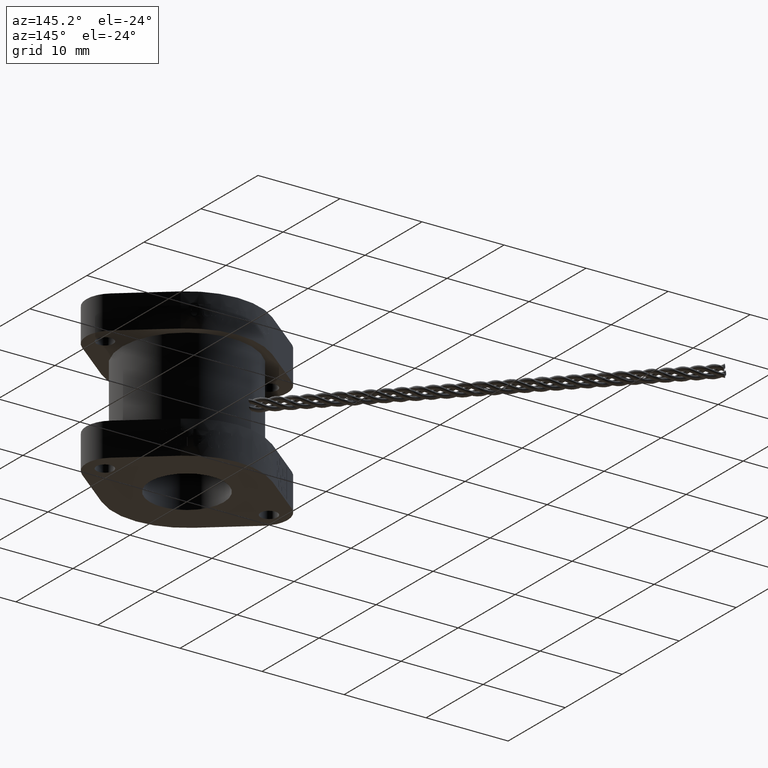
[diagram: clean part render]
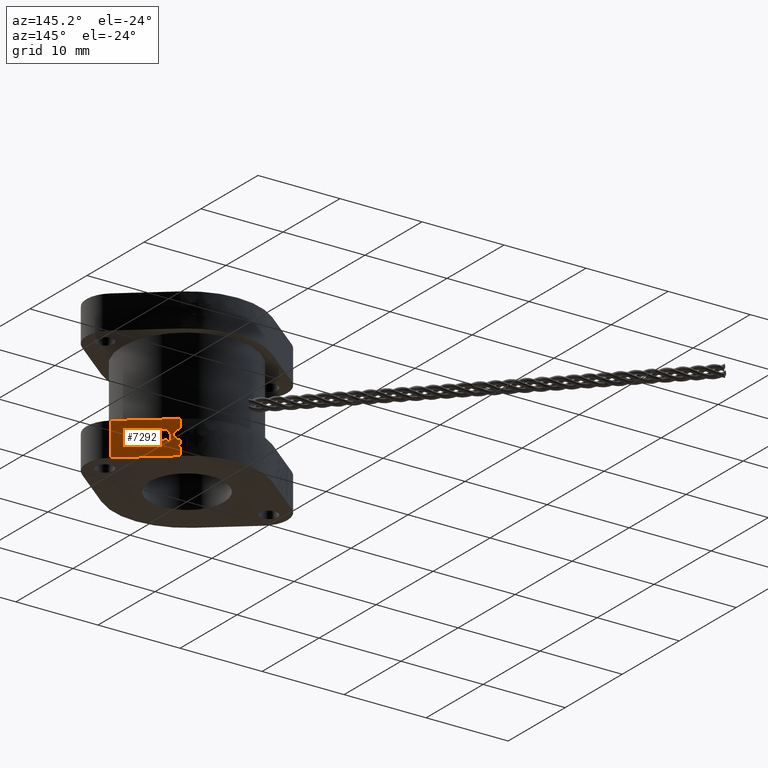
[diagram: same view with one face highlighted and labeled with its STEP entity id]
A machine part, auxiliary view. The second image highlights one B-rep face of the part: STEP entity #7292.
In plain terms, the highlighted planar face has unit normal (-0.6278, -0.7784, 0).
Its self-contained STEP definition (entity closure, byte-faithful):
#67=FACE_BOUND('',#1517,.T.);
#351=B_SPLINE_CURVE_WITH_KNOTS('',3,(#14774,#14775,#14776,#14777,#14778,
#14779,#14780,#14781),.UNSPECIFIED.,.F.,.F.,(4,2,2,4),(0.00496824445063436,
0.0164582152472371,0.0379259114226596,0.0928027767664526),.UNSPECIFIED.);
#352=B_SPLINE_CURVE_WITH_KNOTS('',3,(#14791,#14792,#14793,#14794,#14795,
#14796,#14797,#14798,#14799,#14800,#14801,#14802,#14803,#14804,#14805,#14806,
#14807,#14808,#14809,#14810,#14811,#14812),.UNSPECIFIED.,.F.,.F.,(4,3,3,
3,3,3,3,4),(0.,0.0121390126536792,0.0252764203033251,0.0261595046957589,
0.0332068453776416,0.0345769452463714,0.0373734069584378,0.0401754484435754),
 .UNSPECIFIED.);
#353=B_SPLINE_CURVE_WITH_KNOTS('',3,(#14823,#14824,#14825,#14826,#14827,
#14828,#14829,#14830,#14831,#14832,#14833,#14834,#14835,#14836,#14837,#14838),
 .UNSPECIFIED.,.F.,.F.,(4,3,3,3,3,4),(0.,0.0111111204291815,0.0307937350556354,
0.0312874219127049,0.0542408362511655,0.0816881400349341),.UNSPECIFIED.);
#363=B_SPLINE_CURVE_WITH_KNOTS('',3,(#15051,#15052,#15053,#15054,#15055,
#15056),.UNSPECIFIED.,.F.,.F.,(4,2,4),(0.,0.0183611771925571,0.0404128095996236),
 .UNSPECIFIED.);
#364=B_SPLINE_CURVE_WITH_KNOTS('',3,(#15067,#15068,#15069,#15070,#15071,
#15072,#15073,#15074,#15075,#15076,#15077,#15078,#15079,#15080,#15081,#15082),
 .UNSPECIFIED.,.F.,.F.,(4,3,3,3,3,4),(0.,0.0114010266551768,0.0273304725642002,
0.0281398899620021,0.0358214561072363,0.0439803191328988),.UNSPECIFIED.);
#366=B_SPLINE_CURVE_WITH_KNOTS('',3,(#15104,#15105,#15106,#15107,#15108,
#15109,#15110,#15111,#15112,#15113,#15114,#15115,#15116),.UNSPECIFIED.,
 .F.,.F.,(4,3,3,3,4),(0.,0.0167810358697571,0.0281770434500656,0.0319563456694539,
0.058707720117838),.UNSPECIFIED.);
#368=B_SPLINE_CURVE_WITH_KNOTS('',3,(#15135,#15136,#15137,#15138,#15139,
#15140,#15141,#15142,#15143,#15144),.UNSPECIFIED.,.F.,.F.,(4,3,3,4),(0.,
0.0159132904449915,0.0305967410579212,0.0587039397232699),.UNSPECIFIED.);
#370=B_SPLINE_CURVE_WITH_KNOTS('',3,(#15162,#15163,#15164,#15165,#15166,
#15167,#15168,#15169,#15170,#15171,#15172,#15173,#15174,#15175,#15176,#15177,
#15178,#15179,#15180,#15181,#15182,#15183),.UNSPECIFIED.,.F.,.F.,(4,3,3,
3,3,3,3,4),(0.,0.0150738887189481,0.0331871199843852,0.0344621377810908,
0.0448675950615487,0.047341310781941,0.05159987044799,0.0558087697147875),
 .UNSPECIFIED.);
#372=B_SPLINE_CURVE_WITH_KNOTS('',3,(#15211,#15212,#15213,#15214,#15215,
#15216,#15217,#15218,#15219,#15220,#15221,#15222,#15223,#15224,#15225,#15226),
 .UNSPECIFIED.,.F.,.F.,(4,3,3,3,3,4),(0.,0.0210020856806278,0.0507137203056783,
0.0552124357826461,0.0855833615953491,0.118175277670692),.UNSPECIFIED.);
#374=B_SPLINE_CURVE_WITH_KNOTS('',3,(#15244,#15245,#15246,#15247,#15248,
#15249,#15250,#15251),.UNSPECIFIED.,.F.,.F.,(4,2,2,4),(0.,0.0273427410525441,
0.0457365565757034,0.0711708763653387),.UNSPECIFIED.);
#376=B_SPLINE_CURVE_WITH_KNOTS('',3,(#15276,#15277,#15278,#15279,#15280,
#15281,#15282,#15283,#15284,#15285,#15286,#15287,#15288),.UNSPECIFIED.,
 .F.,.F.,(4,3,3,3,4),(0.,0.00793659951533481,0.0158475500723657,0.0160391993394174,
0.0304944252827283),.UNSPECIFIED.);
#384=B_SPLINE_CURVE_WITH_KNOTS('',3,(#15425,#15426,#15427,#15428,#15429,
#15430,#15431,#15432,#15433,#15434,#15435,#15436,#15437,#15438,#15439,#15440,
#15441,#15442,#15443),.UNSPECIFIED.,.F.,.F.,(4,3,3,3,3,3,4),(0.,0.0131345332253317,
0.0276453485606986,0.0288241078240574,0.0411346994779158,0.0457491246261238,
0.0502581520719624),.UNSPECIFIED.);
#386=B_SPLINE_CURVE_WITH_KNOTS('',3,(#15463,#15464,#15465,#15466,#15467,
#15468,#15469,#15470,#15471,#15472,#15473,#15474,#15475),.UNSPECIFIED.,
 .F.,.F.,(4,3,3,3,4),(0.,0.01361786986444,0.0297928237503827,0.0315679088613046,
0.0997993745056581),.UNSPECIFIED.);
#388=B_SPLINE_CURVE_WITH_KNOTS('',3,(#15500,#15501,#15502,#15503,#15504,
#15505,#15506,#15507,#15508,#15509,#15510,#15511,#15512),.UNSPECIFIED.,
 .F.,.F.,(4,3,3,3,4),(0.,0.014275644477196,0.0276247595929452,0.0303296526861949,
0.0677459350810522),.UNSPECIFIED.);
#390=B_SPLINE_CURVE_WITH_KNOTS('',3,(#15537,#15538,#15539,#15540,#15541,
#15542,#15543,#15544,#15545,#15546,#15547,#15548,#15549,#15550,#15551,#15552,
#15553,#15554,#15555),.UNSPECIFIED.,.F.,.F.,(4,3,3,3,3,3,4),(0.,0.0263493826610868,
0.0519735379039735,0.0532039692635792,0.0672659554539387,0.0682239048882527,
0.0854723635922232),.UNSPECIFIED.);
#392=B_SPLINE_CURVE_WITH_KNOTS('',3,(#15586,#15587,#15588,#15589,#15590,
#15591,#15592,#15593),.UNSPECIFIED.,.F.,.F.,(4,2,2,4),(0.,0.00809510613265533,
0.0147737673859648,0.0246874075900174),.UNSPECIFIED.);
#734=PLANE('',#7700);
#1103=FACE_OUTER_BOUND('',#1516,.T.);
#1516=EDGE_LOOP('',(#6427,#6428,#6429,#6430,#6431,#6432,#6433,#6434,#6435,
#6436,#6437,#6438,#6439));
#1517=EDGE_LOOP('',(#6440,#6441,#6442,#6443,#6444,#6445,#6446,#6447,#6448,
#6449,#6450,#6451,#6452,#6453));
#2172=LINE('',#14721,#2712);
#2173=LINE('',#14724,#2713);
#2175=LINE('',#14728,#2715);
#2211=LINE('',#15611,#2751);
#2214=LINE('',#15616,#2754);
#2219=LINE('',#15761,#2759);
#2221=LINE('',#15764,#2761);
#2222=LINE('',#15768,#2762);
#2223=LINE('',#15785,#2763);
#2239=LINE('',#15843,#2779);
#2240=LINE('',#15844,#2780);
#2712=VECTOR('',#8782,0.393700787401575);
#2713=VECTOR('',#8785,0.393700787401575);
#2715=VECTOR('',#8789,0.393700787401575);
#2751=VECTOR('',#8843,0.393700787401575);
#2754=VECTOR('',#8848,0.393700787401575);
#2759=VECTOR('',#8861,39.3700787401575);
#2761=VECTOR('',#8863,39.3700787401575);
#2762=VECTOR('',#8870,39.3700787401575);
#2763=VECTOR('',#8891,0.393700787401575);
#2779=VECTOR('',#8951,39.3700787401575);
#2780=VECTOR('',#8952,39.3700787401575);
#3362=VERTEX_POINT('',#14717);
#3363=VERTEX_POINT('',#14719);
#3364=VERTEX_POINT('',#14723);
#3365=VERTEX_POINT('',#14727);
#3369=VERTEX_POINT('',#14770);
#3370=VERTEX_POINT('',#14772);
#3371=VERTEX_POINT('',#14790);
#3372=VERTEX_POINT('',#14822);
#3385=VERTEX_POINT('',#15049);
#3386=VERTEX_POINT('',#15065);
#3387=VERTEX_POINT('',#15066);
#3390=VERTEX_POINT('',#15103);
#3392=VERTEX_POINT('',#15134);
#3394=VERTEX_POINT('',#15161);
#3396=VERTEX_POINT('',#15210);
#3398=VERTEX_POINT('',#15243);
#3400=VERTEX_POINT('',#15275);
#3410=VERTEX_POINT('',#15424);
#3412=VERTEX_POINT('',#15462);
#3414=VERTEX_POINT('',#15499);
#3416=VERTEX_POINT('',#15536);
#3418=VERTEX_POINT('',#15585);
#3420=VERTEX_POINT('',#15610);
#3428=VERTEX_POINT('',#15759);
#3429=VERTEX_POINT('',#15763);
#3434=VERTEX_POINT('',#15782);
#3455=VERTEX_POINT('',#15842);
#4321=EDGE_CURVE('',#3362,#3363,#2172,.T.);
#4322=EDGE_CURVE('',#3363,#3364,#2173,.T.);
#4324=EDGE_CURVE('',#3364,#3365,#2175,.T.);
#4333=EDGE_CURVE('',#3369,#3370,#351,.T.);
#4334=EDGE_CURVE('',#3370,#3371,#352,.T.);
#4336=EDGE_CURVE('',#3371,#3372,#353,.T.);
#4361=EDGE_CURVE('',#3372,#3385,#363,.T.);
#4362=EDGE_CURVE('',#3386,#3387,#364,.T.);
#4366=EDGE_CURVE('',#3387,#3390,#366,.T.);
#4369=EDGE_CURVE('',#3390,#3392,#368,.T.);
#4372=EDGE_CURVE('',#3392,#3394,#370,.T.);
#4375=EDGE_CURVE('',#3394,#3396,#372,.T.);
#4378=EDGE_CURVE('',#3396,#3398,#374,.T.);
#4381=EDGE_CURVE('',#3398,#3400,#376,.T.);
#4394=EDGE_CURVE('',#3410,#3386,#384,.T.);
#4397=EDGE_CURVE('',#3412,#3410,#386,.T.);
#4400=EDGE_CURVE('',#3414,#3412,#388,.T.);
#4403=EDGE_CURVE('',#3416,#3414,#390,.T.);
#4406=EDGE_CURVE('',#3418,#3416,#392,.T.);
#4409=EDGE_CURVE('',#3420,#3418,#2211,.T.);
#4412=EDGE_CURVE('',#3400,#3420,#2214,.T.);
#4426=EDGE_CURVE('',#3428,#3385,#2219,.T.);
#4428=EDGE_CURVE('',#3362,#3429,#2221,.T.);
#4430=EDGE_CURVE('',#3369,#3365,#2222,.T.);
#4436=EDGE_CURVE('',#3428,#3434,#2223,.T.);
#4464=EDGE_CURVE('',#3434,#3455,#2239,.T.);
#4465=EDGE_CURVE('',#3455,#3429,#2240,.T.);
#6427=ORIENTED_EDGE('',*,*,#4361,.T.);
#6428=ORIENTED_EDGE('',*,*,#4426,.F.);
#6429=ORIENTED_EDGE('',*,*,#4436,.T.);
#6430=ORIENTED_EDGE('',*,*,#4464,.T.);
#6431=ORIENTED_EDGE('',*,*,#4465,.T.);
#6432=ORIENTED_EDGE('',*,*,#4428,.F.);
#6433=ORIENTED_EDGE('',*,*,#4321,.T.);
#6434=ORIENTED_EDGE('',*,*,#4322,.T.);
#6435=ORIENTED_EDGE('',*,*,#4324,.T.);
#6436=ORIENTED_EDGE('',*,*,#4430,.F.);
#6437=ORIENTED_EDGE('',*,*,#4333,.T.);
#6438=ORIENTED_EDGE('',*,*,#4334,.T.);
#6439=ORIENTED_EDGE('',*,*,#4336,.T.);
#6440=ORIENTED_EDGE('',*,*,#4362,.T.);
#6441=ORIENTED_EDGE('',*,*,#4366,.T.);
#6442=ORIENTED_EDGE('',*,*,#4369,.T.);
#6443=ORIENTED_EDGE('',*,*,#4372,.T.);
#6444=ORIENTED_EDGE('',*,*,#4375,.T.);
#6445=ORIENTED_EDGE('',*,*,#4378,.T.);
#6446=ORIENTED_EDGE('',*,*,#4381,.T.);
#6447=ORIENTED_EDGE('',*,*,#4412,.T.);
#6448=ORIENTED_EDGE('',*,*,#4409,.T.);
#6449=ORIENTED_EDGE('',*,*,#4406,.T.);
#6450=ORIENTED_EDGE('',*,*,#4403,.T.);
#6451=ORIENTED_EDGE('',*,*,#4400,.T.);
#6452=ORIENTED_EDGE('',*,*,#4397,.T.);
#6453=ORIENTED_EDGE('',*,*,#4394,.T.);
#7292=ADVANCED_FACE('',(#1103,#67),#734,.F.);
#7700=AXIS2_PLACEMENT_3D('',#15841,#8949,#8950);
#8782=DIRECTION('',(0.778392614127597,-0.627777777777778,0.));
#8785=DIRECTION('',(0.,0.,1.));
#8789=DIRECTION('',(-0.778392614127597,0.627777777777778,0.));
#8843=DIRECTION('',(-0.778392614127597,0.627777777777778,0.));
#8848=DIRECTION('',(0.,0.,1.));
#8861=DIRECTION('',(0.,0.,-1.));
#8863=DIRECTION('',(0.,0.,-1.));
#8870=DIRECTION('',(0.,0.,-1.));
#8891=DIRECTION('',(0.778392614127597,-0.627777777777778,0.));
#8949=DIRECTION('center_axis',(-0.627777777777778,-0.778392614127597,0.));
#8950=DIRECTION('ref_axis',(0.778392614127597,-0.627777777777778,0.));
#8951=DIRECTION('',(0.,0.,-1.));
#8952=DIRECTION('',(-0.778392614127597,0.627777777777778,0.));
#14717=CARTESIAN_POINT('',(0.219969378827647,0.272743868729749,-0.31361491654963));
#14719=CARTESIAN_POINT('',(0.240732677125102,0.255998158367219,-0.31361491654963));
#14721=CARTESIAN_POINT('',(-0.0242462798085947,0.469705094587507,-0.31361491654963));
#14723=CARTESIAN_POINT('',(0.240732677125102,0.255998158367219,-0.304802112378587));
#14724=CARTESIAN_POINT('',(0.240732677125102,0.255998158367219,0.0247642981414154));
#14727=CARTESIAN_POINT('',(0.219969378827647,0.272743868729749,-0.304802112378587));
#14728=CARTESIAN_POINT('',(-0.0337839718261715,0.477397293859765,-0.304802112378587));
#14770=CARTESIAN_POINT('',(0.219969378827647,0.272743868729749,-0.285110329948303));
#14772=CARTESIAN_POINT('',(0.233439321949066,0.26188028805583,-0.280551706418266));
#14774=CARTESIAN_POINT('Ctrl Pts',(0.219969378827647,0.272743868729749,
-0.285110329948302));
#14775=CARTESIAN_POINT('Ctrl Pts',(0.221156303119059,0.271786607984298,
-0.285032133348813));
#14776=CARTESIAN_POINT('Ctrl Pts',(0.222351134652135,0.270822970006446,
-0.284910844011497));
#14777=CARTESIAN_POINT('Ctrl Pts',(0.225695759054621,0.268125512660647,
-0.284397148066484));
#14778=CARTESIAN_POINT('Ctrl Pts',(0.227005983473923,0.267068809707136,
-0.283982480953398));
#14779=CARTESIAN_POINT('Ctrl Pts',(0.22977923189454,0.264832170125616,-0.282981564618416));
#14780=CARTESIAN_POINT('Ctrl Pts',(0.231661286885683,0.263314282778599,
-0.281914866633526));
#14781=CARTESIAN_POINT('Ctrl Pts',(0.233439321949066,0.26188028805583,-0.280551706418266));
#14790=CARTESIAN_POINT('',(0.241158122843704,0.255655034135383,-0.262439874397776));
#14791=CARTESIAN_POINT('Ctrl Pts',(0.233439321949066,0.26188028805583,-0.280551706418266));
#14792=CARTESIAN_POINT('Ctrl Pts',(0.234508717746603,0.26101781466495,-0.279745276800451));
#14793=CARTESIAN_POINT('Ctrl Pts',(0.235515406032149,0.260205915215566,
-0.278815034417891));
#14794=CARTESIAN_POINT('Ctrl Pts',(0.23643100393753,0.259467480641618,-0.27774060732018));
#14795=CARTESIAN_POINT('Ctrl Pts',(0.237421906844489,0.258668312183908,
-0.27657781202742));
#14796=CARTESIAN_POINT('Ctrl Pts',(0.238282914262145,0.257973905128271,
-0.275273385034758));
#14797=CARTESIAN_POINT('Ctrl Pts',(0.239000616697326,0.257395074302174,
-0.273816496685242));
#14798=CARTESIAN_POINT('Ctrl Pts',(0.239048859991271,0.25735616582936,-0.273718565997751));
#14799=CARTESIAN_POINT('Ctrl Pts',(0.239099601135326,0.257315209839312,
-0.273613567095001));
#14800=CARTESIAN_POINT('Ctrl Pts',(0.239152450170294,0.257272622289435,
-0.273501463081431));
#14801=CARTESIAN_POINT('Ctrl Pts',(0.239574205052753,0.256932757860438,
-0.272606831512579));
#14802=CARTESIAN_POINT('Ctrl Pts',(0.240123751829614,0.256488985399557,
-0.271228084698558));
#14803=CARTESIAN_POINT('Ctrl Pts',(0.240540970854488,0.256152711258585,
-0.269206376798229));
#14804=CARTESIAN_POINT('Ctrl Pts',(0.240622083966088,0.25608733494471,-0.268813329001353));
#14805=CARTESIAN_POINT('Ctrl Pts',(0.240698128876914,0.256026021712888,
-0.268395894570565));
#14806=CARTESIAN_POINT('Ctrl Pts',(0.240767188179007,0.255970325018937,
-0.267952898642324));
#14807=CARTESIAN_POINT('Ctrl Pts',(0.240908142644131,0.255856644494125,
-0.267048715538448));
#14808=CARTESIAN_POINT('Ctrl Pts',(0.241005584665683,0.255778056986174,
-0.266130613605155));
#14809=CARTESIAN_POINT('Ctrl Pts',(0.241067936643054,0.255727769785238,
-0.265212007996463));
#14810=CARTESIAN_POINT('Ctrl Pts',(0.241130413031169,0.255677382246375,
-0.264291569496294));
#14811=CARTESIAN_POINT('Ctrl Pts',(0.241158122843704,0.255655034135383,
-0.263363764413144));
#14812=CARTESIAN_POINT('Ctrl Pts',(0.241158122843704,0.255655034135383,
-0.262439874397776));
#14822=CARTESIAN_POINT('',(0.234533325225471,0.260997968602538,-0.244388820337087));
#14823=CARTESIAN_POINT('Ctrl Pts',(0.241158122843704,0.255655034135383,
-0.262439874397776));
#14824=CARTESIAN_POINT('Ctrl Pts',(0.241158122843704,0.255655034135383,
-0.260981722110482));
#14825=CARTESIAN_POINT('Ctrl Pts',(0.241063719851614,0.25573117064993,-0.259531539332084));
#14826=CARTESIAN_POINT('Ctrl Pts',(0.240861278879381,0.255894440369315,
-0.258096754592418));
#14827=CARTESIAN_POINT('Ctrl Pts',(0.240502668092425,0.25618366187378,-0.255555128364643));
#14828=CARTESIAN_POINT('Ctrl Pts',(0.239887116882185,0.256680490221818,
-0.253641286744832));
#14829=CARTESIAN_POINT('Ctrl Pts',(0.239425950989396,0.257052053224798,
-0.252411511030726));
#14830=CARTESIAN_POINT('Ctrl Pts',(0.239414383850348,0.257061372909943,
-0.2523806653266));
#14831=CARTESIAN_POINT('Ctrl Pts',(0.239402920947609,0.257070613787417,
-0.252350265606668));
#14832=CARTESIAN_POINT('Ctrl Pts',(0.239391567250421,0.257079770604506,
-0.252320311977315));
#14833=CARTESIAN_POINT('Ctrl Pts',(0.238863689888273,0.257505506500933,
-0.250927651719816));
#14834=CARTESIAN_POINT('Ctrl Pts',(0.238236161916129,0.258011611143661,
-0.249613633792082));
#14835=CARTESIAN_POINT('Ctrl Pts',(0.23750702587262,0.258599663235606,-0.248379954881527));
#14836=CARTESIAN_POINT('Ctrl Pts',(0.236635137351339,0.259302845959112,
-0.246904742552315));
#14837=CARTESIAN_POINT('Ctrl Pts',(0.23563824871024,0.260106841943198,-0.245578737936069));
#14838=CARTESIAN_POINT('Ctrl Pts',(0.234533325225471,0.260997968602539,
-0.244388820337087));
#15049=CARTESIAN_POINT('',(0.219969378827647,0.272743868729749,-0.23726477894537));
#15051=CARTESIAN_POINT('Ctrl Pts',(0.234533325225471,0.260997968602538,
-0.244388820337087));
#15052=CARTESIAN_POINT('Ctrl Pts',(0.233095931172312,0.262157234541225,
-0.242840857510608));
#15053=CARTESIAN_POINT('Ctrl Pts',(0.231488064342604,0.263453987679676,
-0.241589887002105));
#15054=CARTESIAN_POINT('Ctrl Pts',(0.227742493361378,0.266474810570882,
-0.239361334889399));
#15055=CARTESIAN_POINT('Ctrl Pts',(0.224623920557932,0.268989956101368,
-0.237840446323311));
#15056=CARTESIAN_POINT('Ctrl Pts',(0.219969378827647,0.272743868729749,
-0.23726477894537));
#15065=CARTESIAN_POINT('',(0.299383408332393,0.208696032121299,-0.262926098076179));
#15066=CARTESIAN_POINT('',(0.292333164995558,0.21438209082029,-0.244084930538085));
#15067=CARTESIAN_POINT('Ctrl Pts',(0.299383408332393,0.208696032121299,
-0.262926098076179));
#15068=CARTESIAN_POINT('Ctrl Pts',(0.299383408332393,0.208696032121299,
-0.261429900352402));
#15069=CARTESIAN_POINT('Ctrl Pts',(0.299286990698758,0.208773793454953,
-0.259941726398929));
#15070=CARTESIAN_POINT('Ctrl Pts',(0.299080093306141,0.208940657301048,
-0.258469313671825));
#15071=CARTESIAN_POINT('Ctrl Pts',(0.298791017512874,0.209173798463763,
-0.256412067460448));
#15072=CARTESIAN_POINT('Ctrl Pts',(0.298294149488941,0.209574525164097,
-0.254441656155338));
#15073=CARTESIAN_POINT('Ctrl Pts',(0.297584506374304,0.210146856105368,
-0.252560426250795));
#15074=CARTESIAN_POINT('Ctrl Pts',(0.297548447525396,0.210175937758541,
-0.252464835969582));
#15075=CARTESIAN_POINT('Ctrl Pts',(0.297509955185814,0.210206881452576,
-0.252364478298336));
#15076=CARTESIAN_POINT('Ctrl Pts',(0.297468902598684,0.210239754628744,
-0.252259566131226));
#15077=CARTESIAN_POINT('Ctrl Pts',(0.297079303654641,0.210551728991819,
-0.251263924385339));
#15078=CARTESIAN_POINT('Ctrl Pts',(0.296480204375122,0.211037481533398,
-0.249877947089047));
#15079=CARTESIAN_POINT('Ctrl Pts',(0.295590966379366,0.211754656700222,
-0.248366945753056));
#15080=CARTESIAN_POINT('Ctrl Pts',(0.294646475260314,0.212516393804464,
-0.246762057804575));
#15081=CARTESIAN_POINT('Ctrl Pts',(0.29356020944329,0.213392472955667,-0.24533512676785));
#15082=CARTESIAN_POINT('Ctrl Pts',(0.292333164995558,0.21438209082029,-0.244084930538085));
#15103=CARTESIAN_POINT('',(0.275558448090675,0.227910989104097,-0.23703468720125));
#15104=CARTESIAN_POINT('Ctrl Pts',(0.292333164995558,0.21438209082029,-0.244084930538085));
#15105=CARTESIAN_POINT('Ctrl Pts',(0.290998966778291,0.215458128769198,
-0.242702216022008));
#15106=CARTESIAN_POINT('Ctrl Pts',(0.28956437317,0.216615136134224,-0.241520507293297));
#15107=CARTESIAN_POINT('Ctrl Pts',(0.288029965037021,0.217852644443581,
-0.240538668791866));
#15108=CARTESIAN_POINT('Ctrl Pts',(0.286987947914216,0.218693036787867,
-0.239871901907402));
#15109=CARTESIAN_POINT('Ctrl Pts',(0.285905949273777,0.219565838913084,
-0.239301882133576));
#15110=CARTESIAN_POINT('Ctrl Pts',(0.284796697980321,0.220460361537498,
-0.238827637015359));
#15111=CARTESIAN_POINT('Ctrl Pts',(0.284428832669099,0.220757015546888,
-0.238670361266358));
#15112=CARTESIAN_POINT('Ctrl Pts',(0.284057996210965,0.221056058399171,
-0.238524269526173));
#15113=CARTESIAN_POINT('Ctrl Pts',(0.283684729208224,0.221357100219514,
-0.238389151499574));
#15114=CARTESIAN_POINT('Ctrl Pts',(0.281042599846801,0.223487991583347,
-0.237432733432313));
#15115=CARTESIAN_POINT('Ctrl Pts',(0.278303030462143,0.225697468843477,
-0.23703468720125));
#15116=CARTESIAN_POINT('Ctrl Pts',(0.275558448090675,0.227910989104097,
-0.23703468720125));
#15134=CARTESIAN_POINT('',(0.259026843024993,0.241243816398284,-0.243841818698884));
#15135=CARTESIAN_POINT('Ctrl Pts',(0.275558448090675,0.227910989104097,
-0.23703468720125));
#15136=CARTESIAN_POINT('Ctrl Pts',(0.273932885393976,0.229222014053269,
-0.23703468720125));
#15137=CARTESIAN_POINT('Ctrl Pts',(0.272304486093045,0.23053532673882,-0.237167220327233));
#15138=CARTESIAN_POINT('Ctrl Pts',(0.270695708968615,0.231832814034799,
-0.237467278923293));
#15139=CARTESIAN_POINT('Ctrl Pts',(0.269211264281614,0.233030026559592,
-0.237744147845623));
#15140=CARTESIAN_POINT('Ctrl Pts',(0.2677586052165,0.234202074827681,-0.238160929856739));
#15141=CARTESIAN_POINT('Ctrl Pts',(0.266350587180929,0.235337198294482,
-0.238736470075659));
#15142=CARTESIAN_POINT('Ctrl Pts',(0.263655345871959,0.237510062264412,
-0.239838174552318));
#15143=CARTESIAN_POINT('Ctrl Pts',(0.261193118114411,0.239496704032355,
-0.241508907064126));
#15144=CARTESIAN_POINT('Ctrl Pts',(0.259026843024993,0.241243816398284,
-0.243841818698884));
#15161=CARTESIAN_POINT('',(0.250761040492152,0.247910230045377,-0.271556568367821));
#15162=CARTESIAN_POINT('Ctrl Pts',(0.259026843024993,0.241243816398284,
-0.243841818698884));
#15163=CARTESIAN_POINT('Ctrl Pts',(0.257833161176683,0.242206527149265,
-0.245091454383833));
#15164=CARTESIAN_POINT('Ctrl Pts',(0.25677891967395,0.243056778520894,-0.246516263868285));
#15165=CARTESIAN_POINT('Ctrl Pts',(0.25585297660535,0.243803556523927,-0.248096834436132));
#15166=CARTESIAN_POINT('Ctrl Pts',(0.254740335982025,0.244700907096503,
-0.249996094856622));
#15167=CARTESIAN_POINT('Ctrl Pts',(0.253838937494651,0.245427889764408,
-0.252075950732237));
#15168=CARTESIAN_POINT('Ctrl Pts',(0.253109591502076,0.246016111181389,
-0.254260341302238));
#15169=CARTESIAN_POINT('Ctrl Pts',(0.253058251732442,0.246057516978294,
-0.254414103864582));
#15170=CARTESIAN_POINT('Ctrl Pts',(0.253004629783327,0.246100759757939,
-0.25457776642565));
#15171=CARTESIAN_POINT('Ctrl Pts',(0.252949047044963,0.246145470280176,
-0.254751462483038));
#15172=CARTESIAN_POINT('Ctrl Pts',(0.252495434702394,0.246510354151075,
-0.256169001053564));
#15173=CARTESIAN_POINT('Ctrl Pts',(0.251923368344247,0.246972993194129,
-0.258261510921241));
#15174=CARTESIAN_POINT('Ctrl Pts',(0.251477205568798,0.247332689111639,
-0.261175900253383));
#15175=CARTESIAN_POINT('Ctrl Pts',(0.251371138161885,0.24741820053336,-0.261868745412606));
#15176=CARTESIAN_POINT('Ctrl Pts',(0.251272303215458,0.247497893943425,
-0.262608207620535));
#15177=CARTESIAN_POINT('Ctrl Pts',(0.25118404732828,0.247569072785211,-0.263396351472896));
#15178=CARTESIAN_POINT('Ctrl Pts',(0.251032112747306,0.247691608831777,
-0.26475315961097));
#15179=CARTESIAN_POINT('Ctrl Pts',(0.250926232079215,0.247777002152985,
-0.2661227671381));
#15180=CARTESIAN_POINT('Ctrl Pts',(0.250858397027277,0.247831711482683,
-0.267490724110027));
#15181=CARTESIAN_POINT('Ctrl Pts',(0.250791353021145,0.247885782829737,
-0.268842728906873));
#15182=CARTESIAN_POINT('Ctrl Pts',(0.250761040492152,0.247910230045377,
-0.270201859073453));
#15183=CARTESIAN_POINT('Ctrl Pts',(0.250761040492152,0.247910230045377,
-0.271556568367822));
#15210=CARTESIAN_POINT('',(0.258966065065193,0.241292834145689,-0.302917995624777));
#15211=CARTESIAN_POINT('Ctrl Pts',(0.250761040492152,0.247910230045377,
-0.271556568367822));
#15212=CARTESIAN_POINT('Ctrl Pts',(0.250761040492152,0.247910230045377,
-0.274312747591001));
#15213=CARTESIAN_POINT('Ctrl Pts',(0.250880382198415,0.247813980325387,
-0.277076846051421));
#15214=CARTESIAN_POINT('Ctrl Pts',(0.251150746331059,0.247595930216352,
-0.279811191445389));
#15215=CARTESIAN_POINT('Ctrl Pts',(0.251533230263703,0.247287454893086,
-0.283679467792781));
#15216=CARTESIAN_POINT('Ctrl Pts',(0.252150082466161,0.246792038858616,
-0.286792757339131));
#15217=CARTESIAN_POINT('Ctrl Pts',(0.252766713165562,0.246293008677665,
-0.289212565689809));
#15218=CARTESIAN_POINT('Ctrl Pts',(0.25286007881528,0.246217449226735,-0.289578955133402));
#15219=CARTESIAN_POINT('Ctrl Pts',(0.252953739165439,0.246141806918707,
-0.289929245103162));
#15220=CARTESIAN_POINT('Ctrl Pts',(0.253046843068954,0.246066718125995,
-0.290263666607118));
#15221=CARTESIAN_POINT('Ctrl Pts',(0.253675389542052,0.245559792056875,
-0.292521353437687));
#15222=CARTESIAN_POINT('Ctrl Pts',(0.254455541438394,0.244930595408647,
-0.294691109599293));
#15223=CARTESIAN_POINT('Ctrl Pts',(0.255402672326565,0.244166729316588,
-0.296757192017872));
#15224=CARTESIAN_POINT('Ctrl Pts',(0.256419065788194,0.243347002591144,
-0.298974364625856));
#15225=CARTESIAN_POINT('Ctrl Pts',(0.257607309587765,0.242388677655354,
-0.301027553221399));
#15226=CARTESIAN_POINT('Ctrl Pts',(0.258966065065193,0.241292834145689,
-0.302917995624777));
#15243=CARTESIAN_POINT('',(0.284371252261719,0.220803415730358,-0.315012809625037));
#15244=CARTESIAN_POINT('Ctrl Pts',(0.258966065065193,0.241292834145689,
-0.302917995624777));
#15245=CARTESIAN_POINT('Ctrl Pts',(0.260852334428617,0.239771547885043,
-0.305564403388387));
#15246=CARTESIAN_POINT('Ctrl Pts',(0.263057554657797,0.237993026057036,
-0.307717184811956));
#15247=CARTESIAN_POINT('Ctrl Pts',(0.267146866551308,0.234694974294269,
-0.310619625951966));
#15248=CARTESIAN_POINT('Ctrl Pts',(0.269366788524027,0.232904595432008,
-0.311945550512623));
#15249=CARTESIAN_POINT('Ctrl Pts',(0.276141515318896,0.227440742287537,
-0.314452029873365));
#15250=CARTESIAN_POINT('Ctrl Pts',(0.280281719067821,0.224101645973062,
-0.315012809625037));
#15251=CARTESIAN_POINT('Ctrl Pts',(0.284371252261719,0.220803415730358,
-0.315012809625037));
#15275=CARTESIAN_POINT('',(0.292880166633761,0.213940931093644,-0.313979584308432));
#15276=CARTESIAN_POINT('Ctrl Pts',(0.284371252261719,0.220803415730358,
-0.315012809625037));
#15277=CARTESIAN_POINT('Ctrl Pts',(0.28518198591579,0.220149554732084,-0.315012809625037));
#15278=CARTESIAN_POINT('Ctrl Pts',(0.285995411853385,0.219493522392848,
-0.314993509335412));
#15279=CARTESIAN_POINT('Ctrl Pts',(0.28680549054987,0.218840189621346,-0.314951076301567));
#15280=CARTESIAN_POINT('Ctrl Pts',(0.287612951289551,0.218188968245912,
-0.314908780399892));
#15281=CARTESIAN_POINT('Ctrl Pts',(0.288364034036821,0.21758256756216,-0.314846044578005));
#15282=CARTESIAN_POINT('Ctrl Pts',(0.289051155166342,0.217029026500008,
-0.314769697785836));
#15283=CARTESIAN_POINT('Ctrl Pts',(0.28906780123939,0.217015616513676,-0.314767848222164));
#15284=CARTESIAN_POINT('Ctrl Pts',(0.289084399373956,0.217002237550146,
-0.314765988154748));
#15285=CARTESIAN_POINT('Ctrl Pts',(0.289100949576711,0.216988889723716,
-0.314764117721453));
#15286=CARTESIAN_POINT('Ctrl Pts',(0.290349255525977,0.215982124345173,
-0.314623039509652));
#15287=CARTESIAN_POINT('Ctrl Pts',(0.291665402182753,0.214920645075684,
-0.314384505792102));
#15288=CARTESIAN_POINT('Ctrl Pts',(0.292880166633761,0.213940931093644,
-0.313979584308432));
#15424=CARTESIAN_POINT('',(0.291239161719153,0.215264410273582,-0.282071155413274));
#15425=CARTESIAN_POINT('Ctrl Pts',(0.291239161719153,0.215264410273582,
-0.282071155413274));
#15426=CARTESIAN_POINT('Ctrl Pts',(0.292397869147401,0.214329906578149,
-0.281202124842088));
#15427=CARTESIAN_POINT('Ctrl Pts',(0.293486540029044,0.213451887729557,
-0.280191244783674));
#15428=CARTESIAN_POINT('Ctrl Pts',(0.294465555993872,0.212662306153815,
-0.279012443266169));
#15429=CARTESIAN_POINT('Ctrl Pts',(0.295547156659253,0.211789989472191,
-0.277710122822487));
#15430=CARTESIAN_POINT('Ctrl Pts',(0.296464840474333,0.211049872600991,
-0.276239091867));
#15431=CARTESIAN_POINT('Ctrl Pts',(0.297199133300874,0.210457661536141,
-0.27458471568452));
#15432=CARTESIAN_POINT('Ctrl Pts',(0.297258782221441,0.210409554364874,
-0.274450325493128));
#15433=CARTESIAN_POINT('Ctrl Pts',(0.297318377712179,0.210361445116774,
-0.274312119966432));
#15434=CARTESIAN_POINT('Ctrl Pts',(0.297377735658983,0.210313477438632,
-0.274170020639235));
#15435=CARTESIAN_POINT('Ctrl Pts',(0.297997651418912,0.209812518068431,
-0.272685979880618));
#15436=CARTESIAN_POINT('Ctrl Pts',(0.298601060485455,0.209326999815347,
-0.270782162167845));
#15437=CARTESIAN_POINT('Ctrl Pts',(0.298981032239959,0.209020550577094,
-0.268368106643893));
#15438=CARTESIAN_POINT('Ctrl Pts',(0.299123458474936,0.208905683062079,
-0.267463237176031));
#15439=CARTESIAN_POINT('Ctrl Pts',(0.299224748411492,0.208823992190238,
-0.266548559771937));
#15440=CARTESIAN_POINT('Ctrl Pts',(0.299290078488492,0.208771303136133,
-0.265629208757943));
#15441=CARTESIAN_POINT('Ctrl Pts',(0.299353916366618,0.208719817548345,
-0.264730856564265));
#15442=CARTESIAN_POINT('Ctrl Pts',(0.299383408332393,0.208696032121299,
-0.263828174189564));
#15443=CARTESIAN_POINT('Ctrl Pts',(0.299383408332393,0.208696032121299,
-0.262926098076179));
#15462=CARTESIAN_POINT('',(0.276713229326881,0.2269796519034,-0.286507946478696));
#15463=CARTESIAN_POINT('Ctrl Pts',(0.276713229326881,0.2269796519034,-0.286507946478696));
#15464=CARTESIAN_POINT('Ctrl Pts',(0.278104311915153,0.225857736407132,
-0.286507946478696));
#15465=CARTESIAN_POINT('Ctrl Pts',(0.279516301085218,0.2247189596416,-0.286441154549961));
#15466=CARTESIAN_POINT('Ctrl Pts',(0.280901835404834,0.223601518853473,
-0.286277591048544));
#15467=CARTESIAN_POINT('Ctrl Pts',(0.282547537262045,0.222274251564378,
-0.286083314548681));
#15468=CARTESIAN_POINT('Ctrl Pts',(0.283711586172129,0.221339236761852,
-0.285803798622685));
#15469=CARTESIAN_POINT('Ctrl Pts',(0.284371252261719,0.220803851646344,
-0.285626666061591));
#15470=CARTESIAN_POINT('Ctrl Pts',(0.284443645881018,0.220745096972059,
-0.285607227034187));
#15471=CARTESIAN_POINT('Ctrl Pts',(0.284510446010231,0.220691155232846,
-0.285588668130718));
#15472=CARTESIAN_POINT('Ctrl Pts',(0.284571349581592,0.220642036179051,
-0.285571350389484));
#15473=CARTESIAN_POINT('Ctrl Pts',(0.286912386589531,0.218753977397574,
-0.284905683792001));
#15474=CARTESIAN_POINT('Ctrl Pts',(0.289167152690243,0.216935496561011,
-0.283616382485681));
#15475=CARTESIAN_POINT('Ctrl Pts',(0.291239161719153,0.215264410273582,
-0.282071155413274));
#15499=CARTESIAN_POINT('',(0.261093293658203,0.239577212986511,-0.28128104193587));
#15500=CARTESIAN_POINT('Ctrl Pts',(0.261093293658203,0.239577212986511,
-0.28128104193587));
#15501=CARTESIAN_POINT('Ctrl Pts',(0.262375945765774,0.238542747248864,
-0.2821723764513));
#15502=CARTESIAN_POINT('Ctrl Pts',(0.263694372784918,0.237479428855011,
-0.282968518119473));
#15503=CARTESIAN_POINT('Ctrl Pts',(0.26504969092002,0.23638635758019,-0.283659976666105));
#15504=CARTESIAN_POINT('Ctrl Pts',(0.266317045107274,0.235364229696533,
-0.28430655761392));
#15505=CARTESIAN_POINT('Ctrl Pts',(0.267479286953042,0.234431499581203,
-0.284789101311859));
#15506=CARTESIAN_POINT('Ctrl Pts',(0.26844742679404,0.2336470099561,-0.285140442383189));
#15507=CARTESIAN_POINT('Ctrl Pts',(0.268643598206639,0.23348805106255,-0.285211633621632));
#15508=CARTESIAN_POINT('Ctrl Pts',(0.268832900955884,0.233335178591495,
-0.285277013831631));
#15509=CARTESIAN_POINT('Ctrl Pts',(0.269014296551593,0.233188882080061,
-0.285337059074226));
#15510=CARTESIAN_POINT('Ctrl Pts',(0.271523508043605,0.231165189683911,
-0.28616765373212));
#15511=CARTESIAN_POINT('Ctrl Pts',(0.274122576400498,0.229069027248952,
-0.286507946478696));
#15512=CARTESIAN_POINT('Ctrl Pts',(0.276713229326881,0.2269796519034,-0.286507946478696));
#15536=CARTESIAN_POINT('',(0.283034137146112,0.22188180617327,-0.306321561373594));
#15537=CARTESIAN_POINT('Ctrl Pts',(0.283034137146112,0.22188180617327,-0.306321561373594));
#15538=CARTESIAN_POINT('Ctrl Pts',(0.280342514462357,0.224052614164451,
-0.306321561373594));
#15539=CARTESIAN_POINT('Ctrl Pts',(0.277632790049857,0.226238021296013,
-0.305929516839911));
#15540=CARTESIAN_POINT('Ctrl Pts',(0.275054429132698,0.228317483070835,
-0.304932889204567));
#15541=CARTESIAN_POINT('Ctrl Pts',(0.2725470337503,0.230339710764936,-0.303963692256924));
#15542=CARTESIAN_POINT('Ctrl Pts',(0.27025325838553,0.232189652780163,-0.302457551653411));
#15543=CARTESIAN_POINT('Ctrl Pts',(0.268229659827296,0.233821695765856,
-0.300322682023984));
#15544=CARTESIAN_POINT('Ctrl Pts',(0.268132489828844,0.233900063885733,
-0.300220168964887));
#15545=CARTESIAN_POINT('Ctrl Pts',(0.268032800464106,0.233980391953576,
-0.300112892476589));
#15546=CARTESIAN_POINT('Ctrl Pts',(0.267930814135737,0.234062438720611,
-0.300000653554363));
#15547=CARTESIAN_POINT('Ctrl Pts',(0.266765263266171,0.235000110290837,
-0.298717930904258));
#15548=CARTESIAN_POINT('Ctrl Pts',(0.265327353187536,0.236162262259502,
-0.296800117369749));
#15549=CARTESIAN_POINT('Ctrl Pts',(0.264054726066583,0.237188786484725,
-0.293914524126105));
#15550=CARTESIAN_POINT('Ctrl Pts',(0.263968030459426,0.237258716741202,
-0.293717947883034));
#15551=CARTESIAN_POINT('Ctrl Pts',(0.26388211026776,0.237328017577919,-0.293516869434429));
#15552=CARTESIAN_POINT('Ctrl Pts',(0.263797104540941,0.237396575148112,
-0.293311182699398));
#15553=CARTESIAN_POINT('Ctrl Pts',(0.262266525038395,0.23863099564669,-0.289607668684925));
#15554=CARTESIAN_POINT('Ctrl Pts',(0.261460643363279,0.239280943498165,
-0.285444338593393));
#15555=CARTESIAN_POINT('Ctrl Pts',(0.261093293658203,0.239577212986511,
-0.28128104193587));
#15585=CARTESIAN_POINT('',(0.292454720915159,0.21428405532548,-0.304315888700184));
#15586=CARTESIAN_POINT('Ctrl Pts',(0.292454720915159,0.21428405532548,-0.304315888700184));
#15587=CARTESIAN_POINT('Ctrl Pts',(0.291688566967738,0.214901962553552,
-0.304715621194491));
#15588=CARTESIAN_POINT('Ctrl Pts',(0.290767755761434,0.215644601682386,
-0.305038790853596));
#15589=CARTESIAN_POINT('Ctrl Pts',(0.289307757140394,0.216822098325135,
-0.305481587876797));
#15590=CARTESIAN_POINT('Ctrl Pts',(0.288417447690764,0.217540137625198,
-0.30573016983526));
#15591=CARTESIAN_POINT('Ctrl Pts',(0.285981952874293,0.219504377130974,
-0.306199813421152));
#15592=CARTESIAN_POINT('Ctrl Pts',(0.284505500204266,0.220695144051627,
-0.306321561373594));
#15593=CARTESIAN_POINT('Ctrl Pts',(0.283034137146112,0.22188180617327,-0.306321561373594));
#15610=CARTESIAN_POINT('',(0.292880166633761,0.213940931093644,-0.304315888700184));
#15611=CARTESIAN_POINT('',(-0.0085772143511471,0.457067910068797,-0.304315888700184));
#15616=CARTESIAN_POINT('',(0.292880166633761,0.213940931093644,0.0250074099806166));
#15759=CARTESIAN_POINT('',(0.219969378827647,0.272743868729749,-0.194330708661417));
#15761=CARTESIAN_POINT('',(0.219969378827647,0.272743868729749,0.354330708661417));
#15763=CARTESIAN_POINT('',(0.219969378827647,0.272743868729749,-0.354330708661417));
#15764=CARTESIAN_POINT('',(0.219969378827647,0.272743868729749,0.354330708661417));
#15768=CARTESIAN_POINT('',(0.219969378827647,0.272743868729749,0.354330708661417));
#15782=CARTESIAN_POINT('',(0.434656605424322,0.0995974801541218,-0.194330708661417));
#15785=CARTESIAN_POINT('',(0.145789239453374,0.332570545147818,-0.194330708661417));
#15841=CARTESIAN_POINT('Origin',(0.434656605424322,0.0995974801541218,0.354330708661417));
#15842=CARTESIAN_POINT('',(0.434656605424322,0.0995974801541218,-0.354330708661417));
#15843=CARTESIAN_POINT('',(0.434656605424322,0.0995974801541218,0.354330708661417));
#15844=CARTESIAN_POINT('',(0.434656605424322,0.0995974801541218,-0.354330708661417));